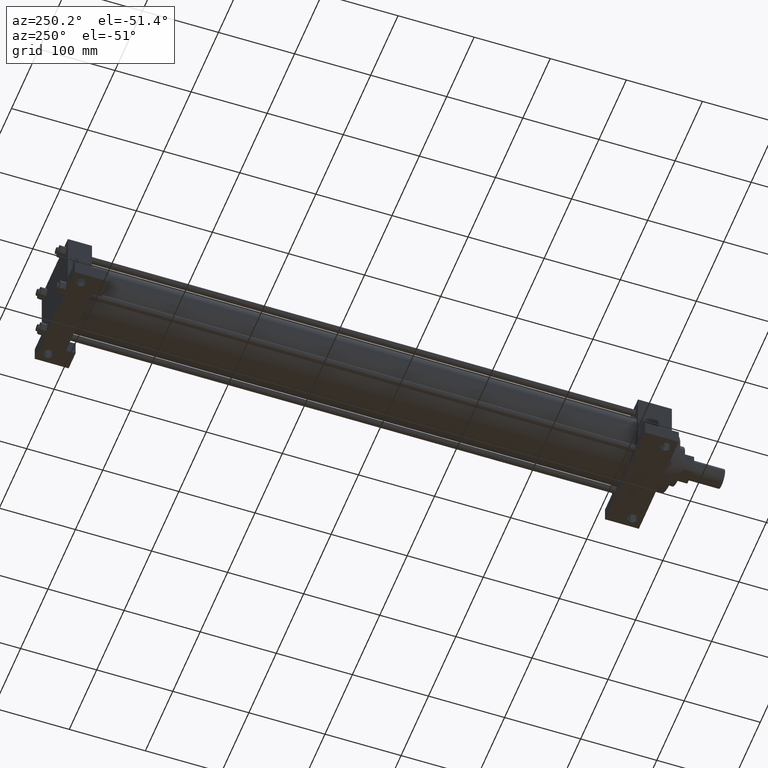
[diagram: clean part render]
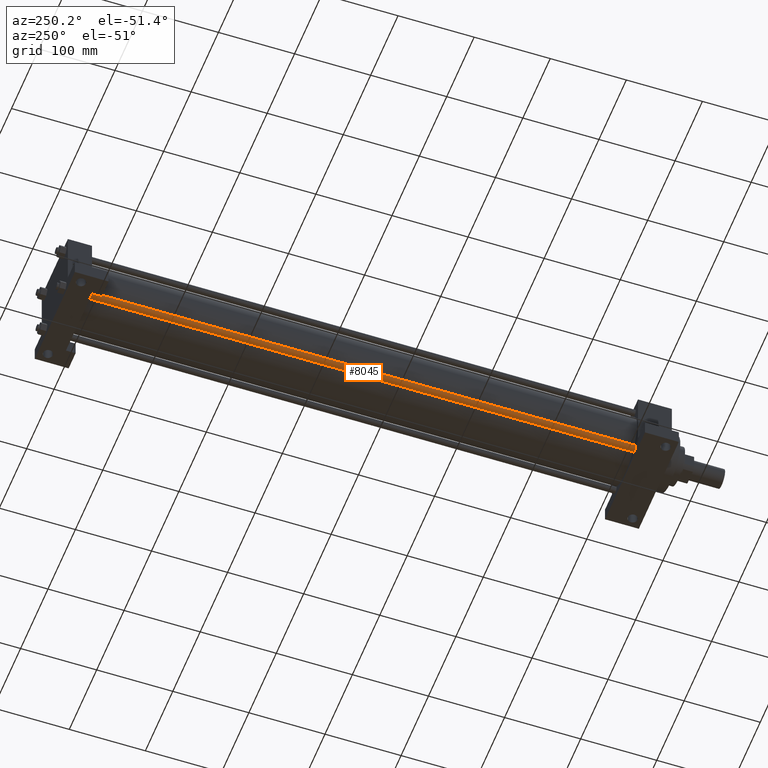
[diagram: same view with one face highlighted and labeled with its STEP entity id]
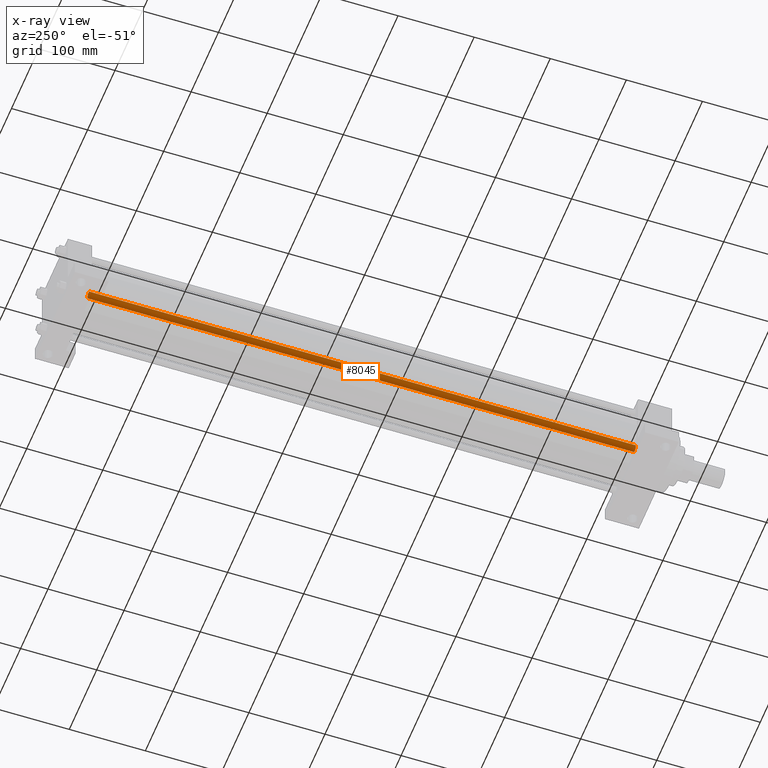
[diagram: x-ray of the same camera — body ghosted, the highlighted face saturated]
A machine part, auxiliary view. The second image highlights one B-rep face of the part: STEP entity #8045.
The next image is the same camera in x-ray: the body ghosted, the highlighted face saturated — about 0% of this face is hidden behind the body in this view.
In plain terms, the highlighted cylindrical surface (bore or boss wall) has radius 4.3815 mm, axis along (0, -1, 0).
Its self-contained STEP definition (entity closure, byte-faithful):
#512=EDGE_CURVE('',#518,#518,#513,.T.);
#513=CIRCLE('',#514,4.381500000E+000);
#514=AXIS2_PLACEMENT_3D('',#515,#516,#517);
#515=CARTESIAN_POINT('',(-3.505200000E+001,8.572500000E+001,-3.505200000E+001));
#516=DIRECTION('',(0.0E+000,1.0E+000,0.0E+000));
#517=DIRECTION('',(1.0E+000,0.0E+000,0.0E+000));
#518=VERTEX_POINT('',#519);
#519=CARTESIAN_POINT('',(-3.067050000E+001,8.572500000E+001,-3.505200000E+001));
#1166=FACE_OUTER_BOUND('',#1168,.T.);
#1167=FACE_BOUND('',#1169,.T.);
#1168=EDGE_LOOP('',(#1170));
#1169=EDGE_LOOP('',(#1171));
#1170=ORIENTED_EDGE('',*,*,#1215,.F.);
#1171=ORIENTED_EDGE('',*,*,#512,.T.);
#1172=CYLINDRICAL_SURFACE('',#1173,4.381500000E+000);
#1173=AXIS2_PLACEMENT_3D('',#1174,#1175,#1176);
#1174=CARTESIAN_POINT('',(-3.505200000E+001,8.032750000E+002,-3.505200000E+001));
#1175=DIRECTION('',(0.0E+000,-1.0E+000,0.0E+000));
#1176=DIRECTION('',(0.0E+000,0.0E+000,-1.0E+000));
#1215=EDGE_CURVE('',#1221,#1221,#1216,.T.);
#1216=CIRCLE('',#1217,4.381500000E+000);
#1217=AXIS2_PLACEMENT_3D('',#1218,#1219,#1220);
#1218=CARTESIAN_POINT('',(-3.505200000E+001,8.032750000E+002,-3.505200000E+001));
#1219=DIRECTION('',(0.0E+000,1.0E+000,0.0E+000));
#1220=DIRECTION('',(1.0E+000,0.0E+000,0.0E+000));
#1221=VERTEX_POINT('',#1222);
#1222=CARTESIAN_POINT('',(-3.067050000E+001,8.032750000E+002,-3.505200000E+001));
#8045=ADVANCED_FACE('',(#1166,#1167),#1172,.T.);